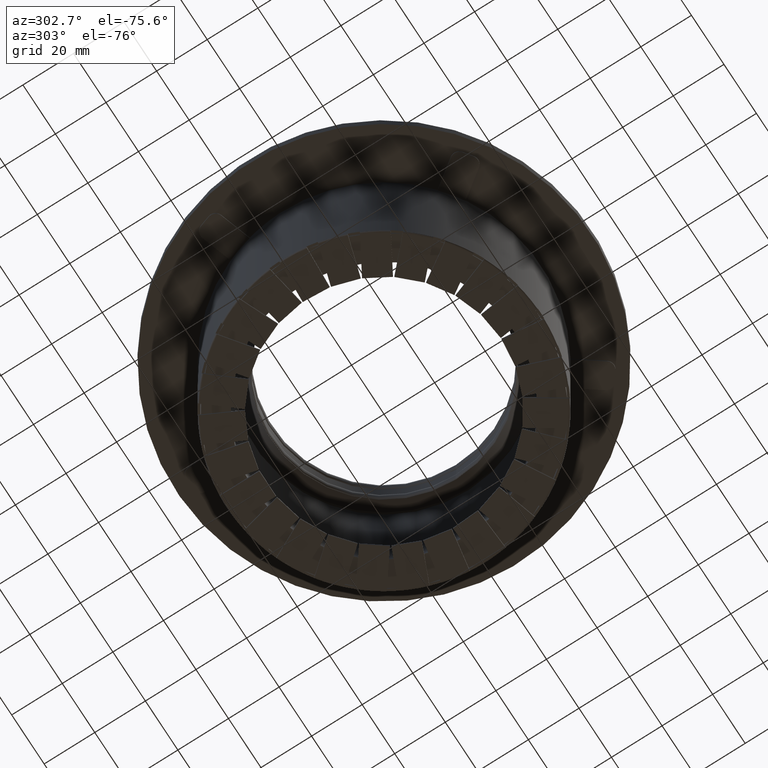
[diagram: clean part render]
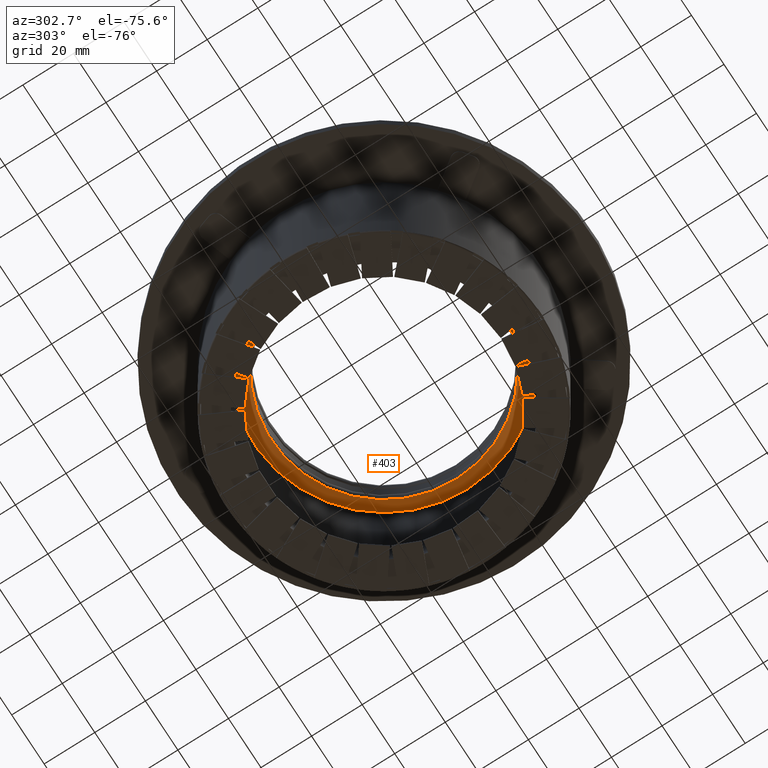
[diagram: same view with one face highlighted and labeled with its STEP entity id]
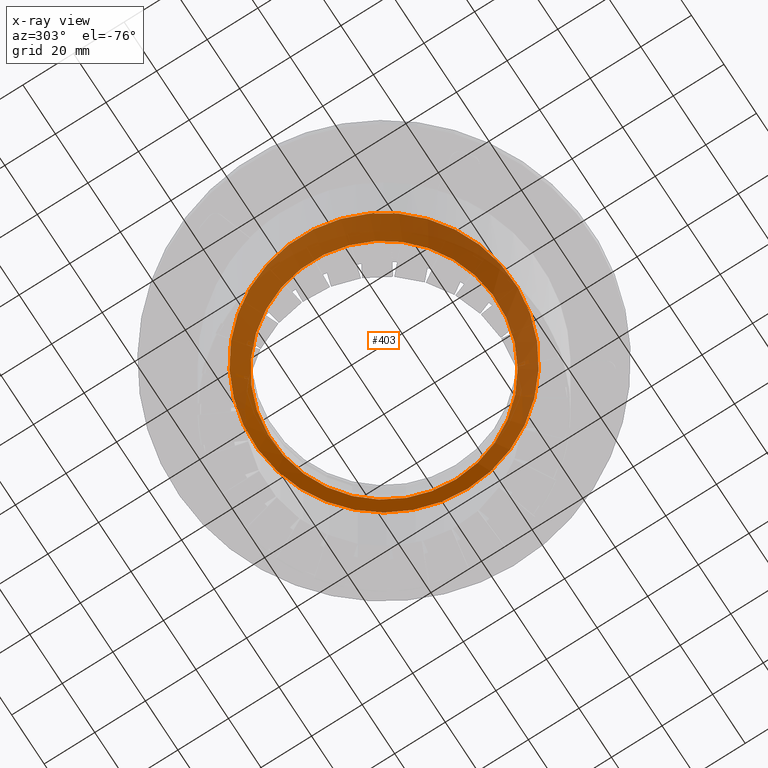
[diagram: x-ray of the same camera — body ghosted, the highlighted face saturated]
A machine part, auxiliary view. The second image highlights one B-rep face of the part: STEP entity #403.
The next image is the same camera in x-ray: the body ghosted, the highlighted face saturated — about 69% of this face is hidden behind the body in this view.
In plain terms, the highlighted conical surface has half-angle 35 deg.
Its self-contained STEP definition (entity closure, byte-faithful):
#280=CARTESIAN_POINT('',(44.45000000000001,-3.194574E-015,54.099999999999994));
#281=VERTEX_POINT('',#280);
#282=CARTESIAN_POINT('',(6.469064E-015,-3.194574E-015,54.100000000000001));
#283=DIRECTION('',(0.0,0.0,-1.0));
#284=DIRECTION('',(1.0,0.0,0.0));
#285=AXIS2_PLACEMENT_3D('',#282,#283,#284);
#286=CIRCLE('',#285,44.450000000000003);
#287=EDGE_CURVE('',#281,#281,#286,.T.);
#377=CARTESIAN_POINT('',(51.452075382097107,-3.194574E-015,64.099999999999994));
#378=VERTEX_POINT('',#377);
#379=CARTESIAN_POINT('',(7.673711E-015,-3.194574E-015,64.099999999999994));
#380=DIRECTION('',(0.0,0.0,-1.0));
#381=DIRECTION('',(1.0,0.0,0.0));
#382=AXIS2_PLACEMENT_3D('',#379,#380,#381);
#383=CIRCLE('',#382,51.4520753820971);
#384=EDGE_CURVE('',#378,#378,#383,.T.);
#392=CARTESIAN_POINT('',(7.071387E-015,-3.194574E-015,59.100000000000001));
#393=DIRECTION('',(1.204647E-016,0.0,1.0));
#394=DIRECTION('',(1.0,0.0,0.0));
#395=AXIS2_PLACEMENT_3D('',#392,#393,#394);
#396=CONICAL_SURFACE('',#395,47.951037691048555,34.999999999999986);
#397=ORIENTED_EDGE('',*,*,#287,.F.);
#398=EDGE_LOOP('',(#397));
#399=FACE_OUTER_BOUND('',#398,.T.);
#400=ORIENTED_EDGE('',*,*,#384,.T.);
#401=EDGE_LOOP('',(#400));
#402=FACE_BOUND('',#401,.T.);
#403=ADVANCED_FACE('',(#399,#402),#396,.T.);